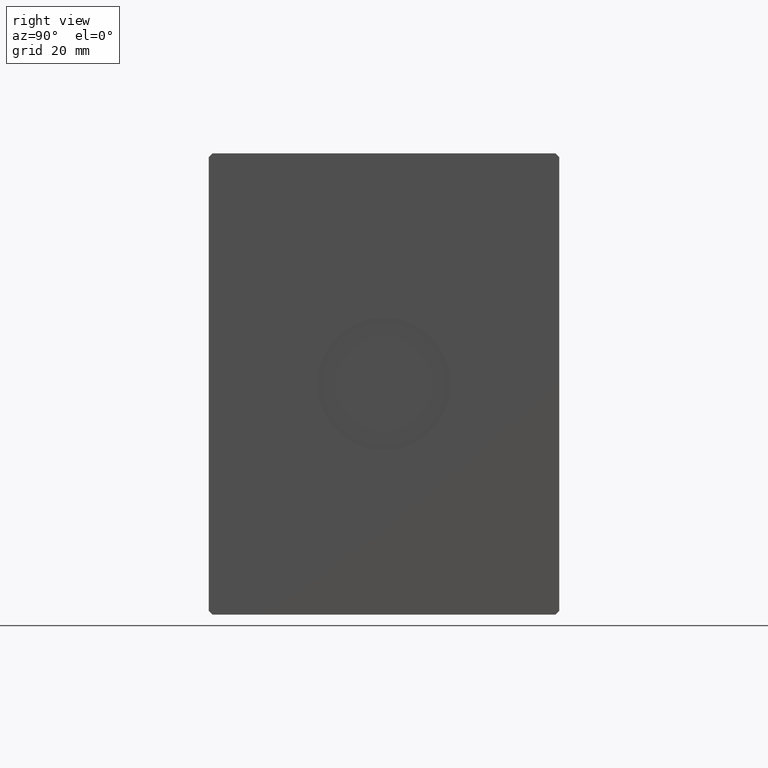
[diagram: clean part render]
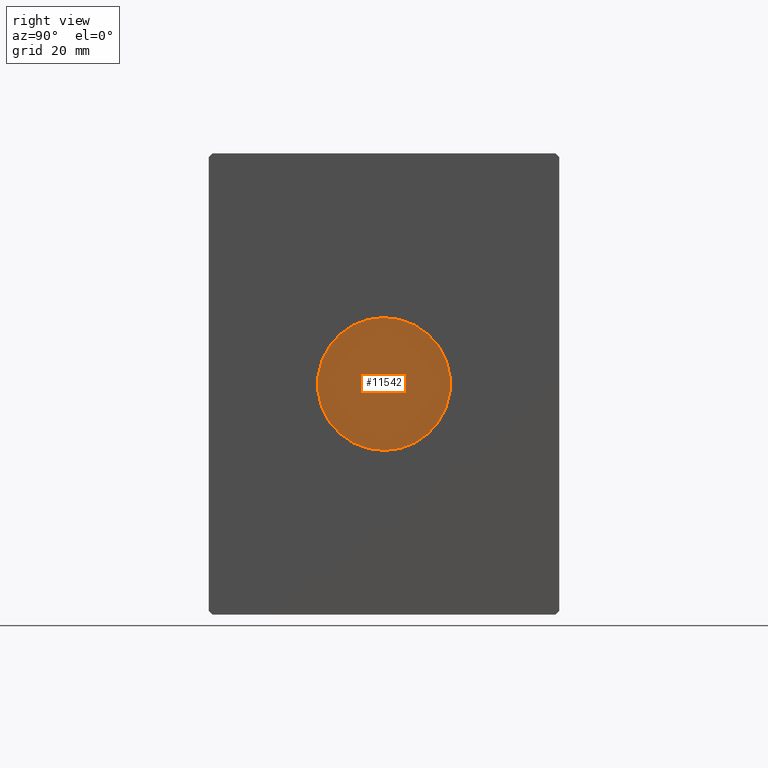
[diagram: same view with one face highlighted and labeled with its STEP entity id]
A machine part, right view. The second image highlights one B-rep face of the part: STEP entity #11542.
In plain terms, the highlighted planar face has unit normal (1, 0, 0).
Its self-contained STEP definition (entity closure, byte-faithful):
#1191 = CARTESIAN_POINT ( 'NONE',  ( 120.7999999999999972, 0.000000000000000000, 0.000000000000000000 ) ) ;
#3273 = EDGE_CURVE ( 'NONE', #14155, #24721, #31541, .T. ) ;
#5252 = AXIS2_PLACEMENT_3D ( 'NONE', #23862, #26630, #39529 ) ;
#7158 = EDGE_CURVE ( 'NONE', #24721, #14155, #16066, .T. ) ;
#7909 = CARTESIAN_POINT ( 'NONE',  ( 120.7999999999999972, 0.000000000000000000, -18.00000000000000000 ) ) ;
#8725 = AXIS2_PLACEMENT_3D ( 'NONE', #1191, #14513, #10926 ) ;
#10383 = DIRECTION ( 'NONE',  ( 0.000000000000000000, 0.000000000000000000, -1.000000000000000000 ) ) ;
#10926 = DIRECTION ( 'NONE',  ( 0.000000000000000000, 0.000000000000000000, -1.000000000000000000 ) ) ;
#11005 = CARTESIAN_POINT ( 'NONE',  ( 120.7999999999999972, 0.000000000000000000, 0.000000000000000000 ) ) ;
#11542 = ADVANCED_FACE ( 'NONE', ( #33169 ), #17687, .T. ) ;
#14155 = VERTEX_POINT ( 'NONE', #19769 ) ;
#14513 = DIRECTION ( 'NONE',  ( 1.000000000000000000, 0.000000000000000000, 0.000000000000000000 ) ) ;
#16066 = CIRCLE ( 'NONE', #5252, 18.00000000000000000 ) ;
#17687 = PLANE ( 'NONE',  #8725 ) ;
#17904 = ORIENTED_EDGE ( 'NONE', *, *, #7158, .T. ) ;
#19769 = CARTESIAN_POINT ( 'NONE',  ( 120.7999999999999972, 2.204364238465235428E-15, 18.00000000000000000 ) ) ;
#23862 = CARTESIAN_POINT ( 'NONE',  ( 120.7999999999999972, 0.000000000000000000, 0.000000000000000000 ) ) ;
#24721 = VERTEX_POINT ( 'NONE', #7909 ) ;
#26630 = DIRECTION ( 'NONE',  ( 1.000000000000000000, 0.000000000000000000, 0.000000000000000000 ) ) ;
#29997 = ORIENTED_EDGE ( 'NONE', *, *, #3273, .T. ) ;
#31454 = EDGE_LOOP ( 'NONE', ( #17904, #29997 ) ) ;
#31541 = CIRCLE ( 'NONE', #38970, 18.00000000000000000 ) ;
#33169 = FACE_OUTER_BOUND ( 'NONE', #31454, .T. ) ;
#36418 = DIRECTION ( 'NONE',  ( 1.000000000000000000, 0.000000000000000000, 0.000000000000000000 ) ) ;
#38970 = AXIS2_PLACEMENT_3D ( 'NONE', #11005, #36418, #10383 ) ;
#39529 = DIRECTION ( 'NONE',  ( 0.000000000000000000, 0.000000000000000000, -1.000000000000000000 ) ) ;